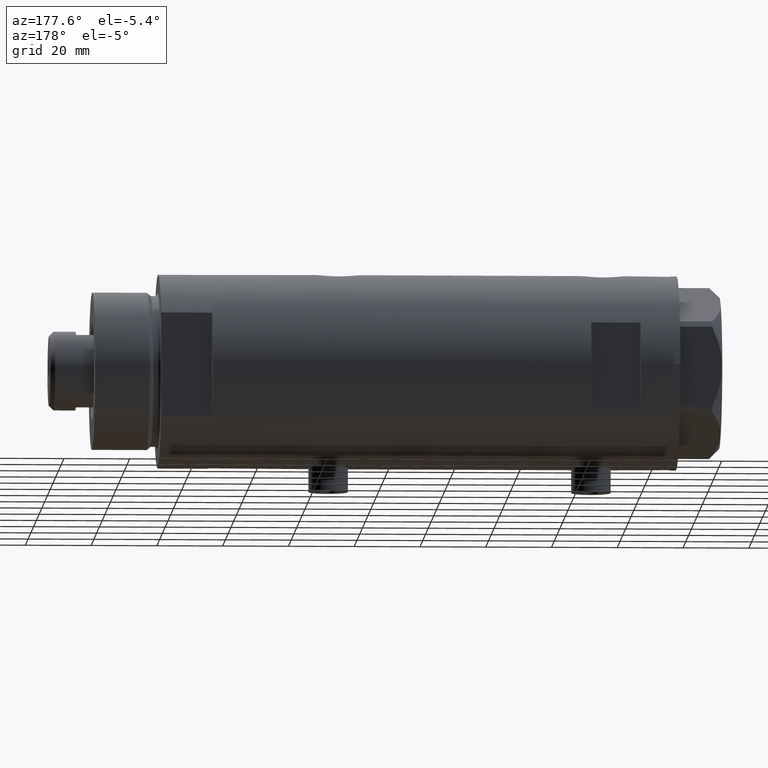
[diagram: clean part render]
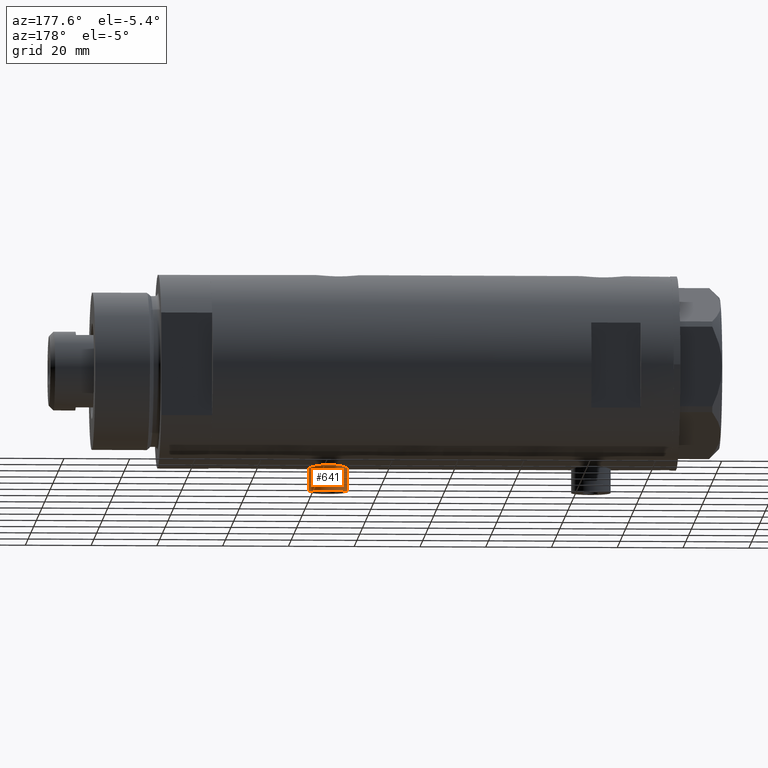
[diagram: same view with one face highlighted and labeled with its STEP entity id]
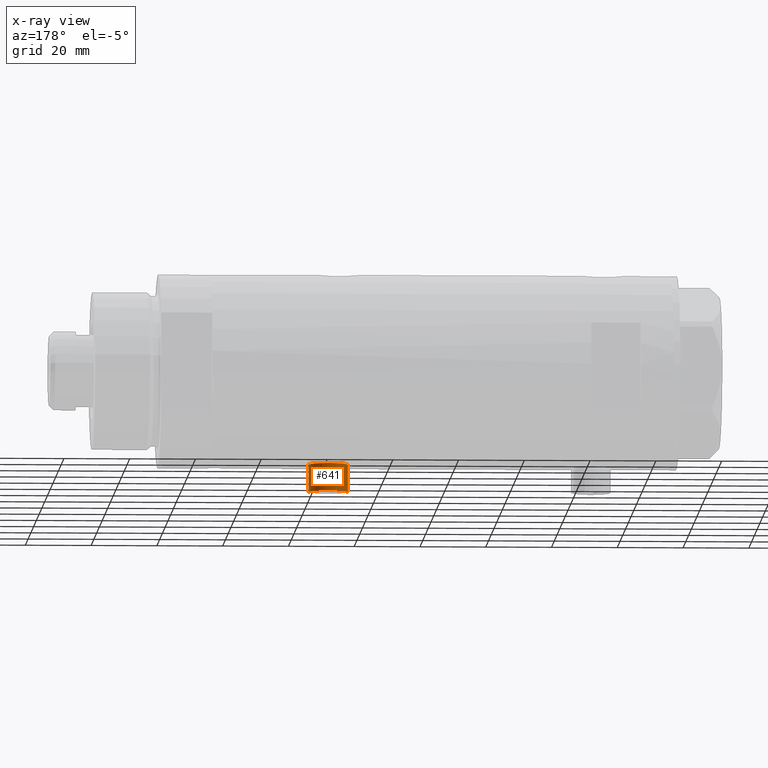
[diagram: x-ray of the same camera — body ghosted, the highlighted face saturated]
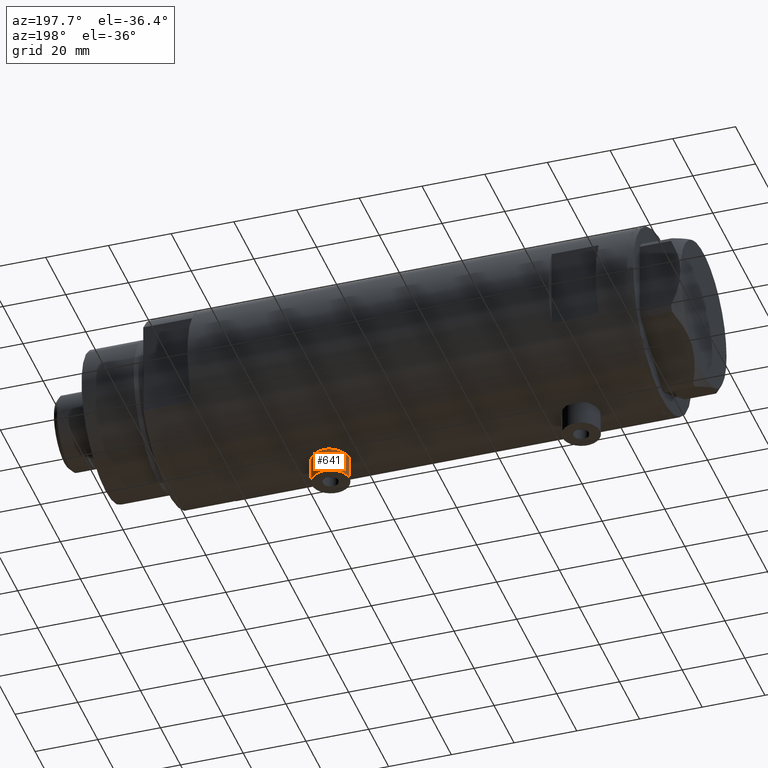
[diagram: same view with one face highlighted and labeled with its STEP entity id]
A machine part, auxiliary view. The second image highlights one B-rep face of the part: STEP entity #641.
The next image is the same camera in x-ray: the body ghosted, the highlighted face saturated — about 0% of this face is hidden behind the body in this view.
A second angle (auxiliary view) of the same face is appended — the face is thin or edge-on in the first view.
In plain terms, the highlighted cylindrical surface (edge-blend (fillet) strip) has radius 6 mm, axis along (0, 0, 1).
Its self-contained STEP definition (entity closure, byte-faithful):
#297 = DIRECTION ( 'NONE',  ( 0.000000000000000000, 0.000000000000000000, 1.000000000000000000 ) ) ;
#364 = CARTESIAN_POINT ( 'NONE',  ( -28.30000000000000071, 7.347880794884123680E-16, -27.79999999999999005 ) ) ;
#403 = FACE_OUTER_BOUND ( 'NONE', #4717, .T. ) ;
#451 = DIRECTION ( 'NONE',  ( -1.000000000000000000, 0.000000000000000000, 0.000000000000000000 ) ) ;
#480 = AXIS2_PLACEMENT_3D ( 'NONE', #3026, #451, #494 ) ;
#494 = DIRECTION ( 'NONE',  ( 0.000000000000000000, 0.000000000000000000, 1.000000000000000000 ) ) ;
#579 = EDGE_CURVE ( 'NONE', #798, #1872, #3365, .T. ) ;
#630 = DIRECTION ( 'NONE',  ( -1.000000000000000000, 0.000000000000000000, 0.000000000000000000 ) ) ;
#641 = ADVANCED_FACE ( 'NONE', ( #403 ), #4060, .T. ) ;
#679 = CARTESIAN_POINT ( 'NONE',  ( -28.30000000000000071, 0.000000000000000000, -33.79999999999999716 ) ) ;
#798 = VERTEX_POINT ( 'NONE', #1961 ) ;
#1002 = ORIENTED_EDGE ( 'NONE', *, *, #3948, .F. ) ;
#1048 = CIRCLE ( 'NONE', #2131, 6.000000000000001776 ) ;
#1149 = VERTEX_POINT ( 'NONE', #3820 ) ;
#1603 = ORIENTED_EDGE ( 'NONE', *, *, #1719, .F. ) ;
#1719 = EDGE_CURVE ( 'NONE', #798, #2966, #4502, .T. ) ;
#1872 = VERTEX_POINT ( 'NONE', #364 ) ;
#1895 = DIRECTION ( 'NONE',  ( 0.000000000000000000, 0.000000000000000000, -1.000000000000000000 ) ) ;
#1961 = CARTESIAN_POINT ( 'NONE',  ( -36.60000000000000142, 7.347880794884123680E-16, -27.79999999999999005 ) ) ;
#1982 = ORIENTED_EDGE ( 'NONE', *, *, #2775, .T. ) ;
#2131 = AXIS2_PLACEMENT_3D ( 'NONE', #679, #630, #297 ) ;
#2193 = CARTESIAN_POINT ( 'NONE',  ( -36.60000000000000142, 7.347880794884121708E-16, -27.79999999999999361 ) ) ;
#2421 = VECTOR ( 'NONE', #4492, 1000.000000000000000 ) ;
#2644 = DIRECTION ( 'NONE',  ( 1.000000000000000000, -0.000000000000000000, -0.000000000000000000 ) ) ;
#2775 = EDGE_CURVE ( 'NONE', #1872, #1149, #1048, .T. ) ;
#2818 = CARTESIAN_POINT ( 'NONE',  ( -36.60000000000000142, 0.000000000000000000, -39.80000000000000426 ) ) ;
#2966 = VERTEX_POINT ( 'NONE', #2818 ) ;
#3026 = CARTESIAN_POINT ( 'NONE',  ( -36.60000000000000142, 0.000000000000000000, -33.79999999999999716 ) ) ;
#3365 = LINE ( 'NONE', #2193, #3403 ) ;
#3403 = VECTOR ( 'NONE', #2644, 1000.000000000000000 ) ;
#3756 = DIRECTION ( 'NONE',  ( 1.000000000000000000, -0.000000000000000000, -0.000000000000000000 ) ) ;
#3795 = AXIS2_PLACEMENT_3D ( 'NONE', #4463, #3756, #1895 ) ;
#3814 = LINE ( 'NONE', #4170, #2421 ) ;
#3820 = CARTESIAN_POINT ( 'NONE',  ( -28.30000000000000071, 0.000000000000000000, -39.80000000000000426 ) ) ;
#3948 = EDGE_CURVE ( 'NONE', #2966, #1149, #3814, .T. ) ;
#4060 = CYLINDRICAL_SURFACE ( 'NONE', #3795, 6.000000000000005329 ) ;
#4062 = ORIENTED_EDGE ( 'NONE', *, *, #579, .T. ) ;
#4170 = CARTESIAN_POINT ( 'NONE',  ( -36.60000000000000142, 0.000000000000000000, -39.80000000000000426 ) ) ;
#4463 = CARTESIAN_POINT ( 'NONE',  ( -36.60000000000000142, 0.000000000000000000, -33.79999999999999716 ) ) ;
#4492 = DIRECTION ( 'NONE',  ( 1.000000000000000000, -0.000000000000000000, -0.000000000000000000 ) ) ;
#4502 = CIRCLE ( 'NONE', #480, 6.000000000000001776 ) ;
#4717 = EDGE_LOOP ( 'NONE', ( #1603, #4062, #1982, #1002 ) ) ;